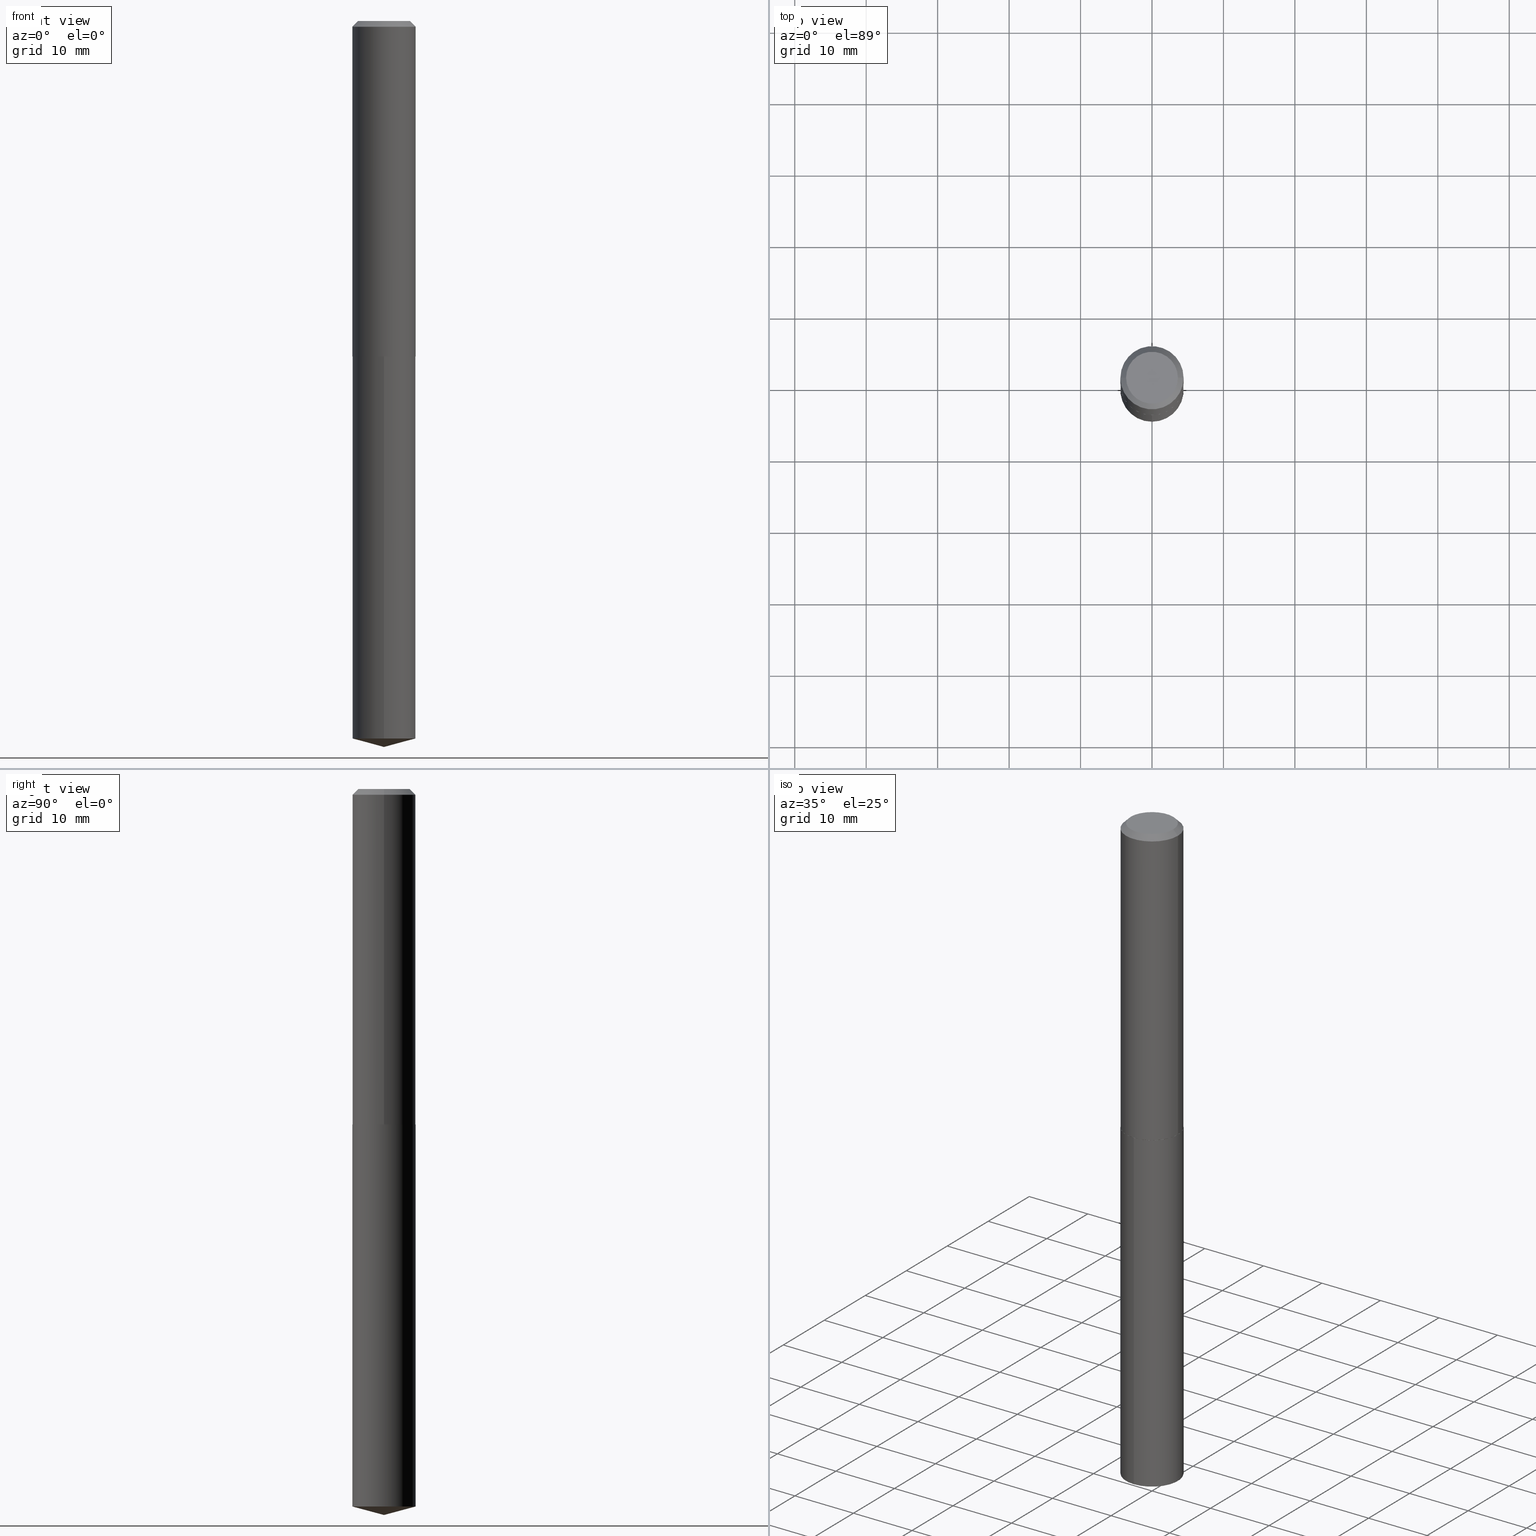
[diagram: canonical four-view strip — front | top / right | iso, engineering-drawing reading convention]
A machine part, canonical four-view strip (front | top / right | iso — engineering-drawing reading convention). The complete STEP part file that produces these views, byte-faithful:
ISO-10303-21;
HEADER;
FILE_DESCRIPTION (( 'STEP AP203' ),
    '1' );
FILE_NAME ('53219.STEP',
    '2024-04-22T19:29:23',
    ( '' ),
    ( '' ),
    'SwSTEP 2.0',
    'SolidWorks 2023',
    '' );
FILE_SCHEMA (( 'CONFIG_CONTROL_DESIGN' ));
ENDSEC;

DATA;
#1 = EDGE_LOOP ( 'NONE', ( #156, #237 ) ) ;
#2 = LINE ( 'NONE', #127, #3 ) ;
#3 = VECTOR ( 'NONE', #13, 39.37007874015748143 ) ;
#4 = CC_DESIGN_PERSON_AND_ORGANIZATION_ASSIGNMENT ( #108, #197, ( #198 ) ) ;
#5 = VERTEX_POINT ( 'NONE', #363 ) ;
#6 = UNCERTAINTY_MEASURE_WITH_UNIT (LENGTH_MEASURE( 1.000000000000000082E-05 ), #69, 'distance_accuracy_value', 'NONE');
#7 = DIRECTION ( 'NONE',  ( 2.438088387897960049E-29, -3.491481338843145188E-15, -1.000000000000000000 ) ) ;
#8 = FACE_OUTER_BOUND ( 'NONE', #193, .T. ) ;
#9 = ORIENTED_EDGE ( 'NONE', *, *, #270, .F. ) ;
#10 = DIRECTION ( 'NONE',  ( 0.7071067811863059882, -2.468850131079726789E-15, 0.7071067811867890462 ) ) ;
#11 = CARTESIAN_POINT ( 'NONE',  ( -0.1735000000000003484, -5.216816640464246268E-15, -1.848000000000000087 ) ) ;
#12 = CARTESIAN_POINT ( 'NONE',  ( 9.667801149324647603E-29, -1.380322537295493422E-14, -3.953376840516984903 ) ) ;
#13 = DIRECTION ( 'NONE',  ( 6.863315791527692682E-15, 0.9659258262890694224, 0.2588190451025165206 ) ) ;
#14 = EDGE_CURVE ( 'NONE', #300, #344, #336, .T. ) ;
#15 = DIRECTION ( 'NONE',  ( -1.000000000000000000, 6.982962677686266711E-15, 0.000000000000000000 ) ) ;
#16 = CARTESIAN_POINT ( 'NONE',  ( 4.519226353830132171E-29, -6.452257514182132781E-15, -1.847999999999999865 ) ) ;
#17 =( GEOMETRIC_REPRESENTATION_CONTEXT ( 3 ) GLOBAL_UNCERTAINTY_ASSIGNED_CONTEXT ( ( #6 ) ) GLOBAL_UNIT_ASSIGNED_CONTEXT ( ( #69, #187, #308 ) ) REPRESENTATION_CONTEXT ( 'NONE', 'WORKASPACE' ) );
#18 = PERSON_AND_ORGANIZATION ( #35, #113 ) ;
#19 = CARTESIAN_POINT ( 'NONE',  ( 0.000000000000000000, 0.000000000000000000, 0.000000000000000000 ) ) ;
#20 = COORDINATED_UNIVERSAL_TIME_OFFSET ( 5, 0, .BEHIND. ) ;
#21 = EDGE_CURVE ( 'NONE', #225, #273, #366, .T. ) ;
#22 = COORDINATED_UNIVERSAL_TIME_OFFSET ( 5, 0, .BEHIND. ) ;
#23 = VECTOR ( 'NONE', #335, 39.37007874015748143 ) ;
#24 = CARTESIAN_POINT ( 'NONE',  ( 9.781763903568464498E-29, -1.396608477362701270E-14, -4.000000000000000000 ) ) ;
#25 = PRODUCT ( '53219', '53219', '', ( #160 ) ) ;
#26 = EDGE_LOOP ( 'NONE', ( #154, #351 ) ) ;
#27 = EDGE_CURVE ( 'NONE', #5, #133, #112, .T. ) ;
#28 = FACE_OUTER_BOUND ( 'NONE', #62, .T. ) ;
#29 = LOCAL_TIME ( 15, 29, 23.00000000000000000, #318 ) ;
#30 = CARTESIAN_POINT ( 'NONE',  ( -1.347675995659193016E-47, 1.924124150653632284E-33, 5.510910596163073378E-19 ) ) ;
#31 = CARTESIAN_POINT ( 'NONE',  ( -1.215035505917364906E-15, -0.1740000000000064273, -1.847999999999999199 ) ) ;
#32 = VECTOR ( 'NONE', #285, 39.37007874015748143 ) ;
#33 = CIRCLE ( 'NONE', #120, 0.1739999999999999880 ) ;
#34 = AXIS2_PLACEMENT_3D ( 'NONE', #321, #86, #326 ) ;
#35 = PERSON ( 'UNSPECIFIED', 'UNSPECIFIED', 'UNSPECIFIED', ('UNSPECIFIED'), ('UNSPECIFIED'), ('UNSPECIFIED') ) ;
#36 = LINE ( 'NONE', #372, #246 ) ;
#37 = ORIENTED_EDGE ( 'NONE', *, *, #96, .T. ) ;
#38 = DIRECTION ( 'NONE',  ( -2.445440975892115844E-29, 3.491521193406753176E-15, 1.000000000000000000 ) ) ;
#39 = CARTESIAN_POINT ( 'NONE',  ( 0.000000000000000000, 0.000000000000000000, 0.000000000000000000 ) ) ;
#40 = ORIENTED_EDGE ( 'NONE', *, *, #121, .T. ) ;
#41 = APPROVAL_PERSON_ORGANIZATION ( #162, #239, #262 ) ;
#42 = EDGE_LOOP ( 'NONE', ( #102, #186, #115, #371 ) ) ;
#43 = DIRECTION ( 'NONE',  ( -2.445440975892115844E-29, 3.491521193406753176E-15, 1.000000000000000000 ) ) ;
#44 = CARTESIAN_POINT ( 'NONE',  ( 7.642090019328611420E-31, -1.091087918388491499E-16, -0.03125000000000024286 ) ) ;
#45 = EDGE_LOOP ( 'NONE', ( #369, #271, #319 ) ) ;
#46 = APPLICATION_PROTOCOL_DEFINITION ( 'international standard', 'config_control_design', 1994, #53 ) ;
#47 = EDGE_CURVE ( 'NONE', #340, #300, #275, .T. ) ;
#48 = CALENDAR_DATE ( 2024, 22, 4 ) ;
#49 = ORIENTED_EDGE ( 'NONE', *, *, #227, .F. ) ;
#50 = CIRCLE ( 'NONE', #385, 0.1740000000000001823 ) ;
#51 = CARTESIAN_POINT ( 'NONE',  ( 9.667801149324647603E-29, -1.380322537295493422E-14, -3.953376840516984903 ) ) ;
#52 = EDGE_CURVE ( 'NONE', #384, #332, #50, .T. ) ;
#53 = APPLICATION_CONTEXT ( 'configuration controlled 3d designs of mechanical parts and assemblies' ) ;
#54 = EDGE_LOOP ( 'NONE', ( #190, #149, #37, #286 ) ) ;
#55 = APPLICATION_PROTOCOL_DEFINITION ( 'international standard', 'config_control_design', 1994, #92 ) ;
#56 = ADVANCED_FACE ( 'NONE', ( #301 ), #365, .T. ) ;
#57 = APPROVAL_ROLE ( '' ) ;
#58 = DIRECTION ( 'NONE',  ( 0.7071067811865447972, -7.319954787623245001E-15, -0.7071067811865501263 ) ) ;
#59 = DIRECTION ( 'NONE',  ( -0.7071067811863059882, 7.493145998869481680E-15, 0.7071067811867890462 ) ) ;
#60 = DIRECTION ( 'NONE',  ( -2.445468806185136597E-29, 3.491481338843145583E-15, 1.000000000000000000 ) ) ;
#61 = AXIS2_PLACEMENT_3D ( 'NONE', #181, #101, #215 ) ;
#62 = EDGE_LOOP ( 'NONE', ( #117, #209, #40, #49 ) ) ;
#63 = ORIENTED_EDGE ( 'NONE', *, *, #52, .T. ) ;
#64 = CARTESIAN_POINT ( 'NONE',  ( -8.649538844133019923E-28, 1.234954531849590373E-13, 35.37007874015748143 ) ) ;
#65 = AXIS2_PLACEMENT_3D ( 'NONE', #39, #146, #219 ) ;
#66 = ADVANCED_FACE ( 'NONE', ( #309 ), #119, .T. ) ;
#67 = CARTESIAN_POINT ( 'NONE',  ( -0.1740000000000001823, -5.214167413290135067E-15, -1.847499999999999920 ) ) ;
#68 = ORIENTED_EDGE ( 'NONE', *, *, #21, .T. ) ;
#69 =( CONVERSION_BASED_UNIT ( 'INCH', #368 ) LENGTH_UNIT ( ) NAMED_UNIT ( #196 ) );
#70 = DIRECTION ( 'NONE',  ( -2.445440975892115844E-29, 3.491521193406753176E-15, 1.000000000000000000 ) ) ;
#71 = CARTESIAN_POINT ( 'NONE',  ( -8.649538844133019923E-28, 1.234954531849590373E-13, 35.37007874015748143 ) ) ;
#72 = DIRECTION ( 'NONE',  ( -2.445468806185136597E-29, 3.491481338843145583E-15, 1.000000000000000000 ) ) ;
#73 = AXIS2_PLACEMENT_3D ( 'NONE', #30, #60, #238 ) ;
#74 = EDGE_CURVE ( 'NONE', #332, #344, #167, .T. ) ;
#75 = AXIS2_PLACEMENT_3D ( 'NONE', #161, #176, #242 ) ;
#76 = CARTESIAN_POINT ( 'NONE',  ( 9.781763903568462255E-29, -1.396608477362701270E-14, -4.000000000000000000 ) ) ;
#77 = DIRECTION ( 'NONE',  ( -2.445468806185136877E-29, 3.491481338843145188E-15, 1.000000000000000000 ) ) ;
#78 = APPROVAL_DATE_TIME ( #260, #239 ) ;
#79 = VECTOR ( 'NONE', #77, 39.37007874015748143 ) ;
#80 = APPROVAL_PERSON_ORGANIZATION ( #375, #231, #135 ) ;
#81 = ORIENTED_EDGE ( 'NONE', *, *, #121, .F. ) ;
#82 = DATE_AND_TIME ( #137, #337 ) ;
#83 = FACE_OUTER_BOUND ( 'NONE', #341, .T. ) ;
#84 = SHAPE_DEFINITION_REPRESENTATION ( #249, #232 ) ;
#85 = DATE_AND_TIME ( #292, #282 ) ;
#86 = DIRECTION ( 'NONE',  ( -2.445468806185136597E-29, 3.491481338843145583E-15, 1.000000000000000000 ) ) ;
#87 = DIRECTION ( 'NONE',  ( 1.000000000000000000, -6.982962677686265133E-15, 0.000000000000000000 ) ) ;
#88 = CARTESIAN_POINT ( 'NONE',  ( 4.519226353830132171E-29, -6.452257514182132781E-15, -1.847999999999999865 ) ) ;
#89 = EDGE_CURVE ( 'NONE', #133, #5, #203, .T. ) ;
#90 = CYLINDRICAL_SURFACE ( 'NONE', #103, 0.1740000000000000713 ) ;
#91 = FACE_OUTER_BOUND ( 'NONE', #213, .T. ) ;
#92 = APPLICATION_CONTEXT ( 'configuration controlled 3d designs of mechanical parts and assemblies' ) ;
#93 = AXIS2_PLACEMENT_3D ( 'NONE', #111, #229, #381 ) ;
#94 = CARTESIAN_POINT ( 'NONE',  ( -6.738379978295965082E-48, 9.620620753268161422E-34, 2.755455298081536689E-19 ) ) ;
#95 = ORIENTED_EDGE ( 'NONE', *, *, #357, .F. ) ;
#96 = EDGE_CURVE ( 'NONE', #208, #133, #250, .T. ) ;
#97 = PERSON_AND_ORGANIZATION_ROLE ( 'design_owner' ) ;
#98 = LOCAL_TIME ( 15, 29, 23.00000000000000000, #199 ) ;
#99 = CARTESIAN_POINT ( 'NONE',  ( 4.519226353830132171E-29, -6.452257514182132781E-15, -1.847999999999999865 ) ) ;
#100 =( LENGTH_UNIT ( ) NAMED_UNIT ( * ) SI_UNIT ( $, .METRE. ) );
#101 = DIRECTION ( 'NONE',  ( -2.445468806185136597E-29, 3.491481338843145583E-15, 1.000000000000000000 ) ) ;
#102 = ORIENTED_EDGE ( 'NONE', *, *, #47, .F. ) ;
#103 = AXIS2_PLACEMENT_3D ( 'NONE', #19, #128, #352 ) ;
#104 = DIRECTION ( 'NONE',  ( -2.445468806185136597E-29, 3.491481338843145583E-15, 1.000000000000000000 ) ) ;
#105 = DATE_TIME_ROLE ( 'classification_date' ) ;
#106 = DIRECTION ( 'NONE',  ( -2.445440975892115844E-29, 3.491521193406753176E-15, 1.000000000000000000 ) ) ;
#107 = VECTOR ( 'NONE', #59, 39.37007874015748143 ) ;
#108 = PERSON_AND_ORGANIZATION ( #35, #113 ) ;
#109 = ADVANCED_FACE ( 'NONE', ( #8 ), #374, .T. ) ;
#110 = DIRECTION ( 'NONE',  ( 1.000000000000000000, -6.982962677686266711E-15, 0.000000000000000000 ) ) ;
#111 = CARTESIAN_POINT ( 'NONE',  ( 4.519226353830132171E-29, -6.452257514182132781E-15, -1.847999999999999865 ) ) ;
#112 = CIRCLE ( 'NONE', #361, 0.1739999999999999880 ) ;
#113 = ORGANIZATION ( 'UNSPECIFIED', 'UNSPECIFIED', '' ) ;
#114 = EDGE_CURVE ( 'NONE', #257, #208, #295, .T. ) ;
#115 = ORIENTED_EDGE ( 'NONE', *, *, #248, .T. ) ;
#116 = CARTESIAN_POINT ( 'NONE',  ( 4.518003619427039369E-29, -6.450511773512711278E-15, -1.847499999999999920 ) ) ;
#117 = ORIENTED_EDGE ( 'NONE', *, *, #74, .F. ) ;
#118 = DIRECTION ( 'NONE',  ( 1.000000000000000000, -6.982962677686265922E-15, 4.876191187177803928E-29 ) ) ;
#119 = CONICAL_SURFACE ( 'NONE', #245, 0.1739999999999999880, 0.7853981633974445042 ) ;
#120 = AXIS2_PLACEMENT_3D ( 'NONE', #130, #104, #136 ) ;
#121 = EDGE_CURVE ( 'NONE', #384, #132, #294, .T. ) ;
#122 = CARTESIAN_POINT ( 'NONE',  ( 0.1740000000000001823, -7.665547279430122726E-15, -1.847499999999999920 ) ) ;
#123 = VECTOR ( 'NONE', #155, 39.37007874015748143 ) ;
#124 = CIRCLE ( 'NONE', #214, 0.1739999999999999880 ) ;
#125 = EDGE_CURVE ( 'NONE', #225, #332, #172, .T. ) ;
#126 = EDGE_LOOP ( 'NONE', ( #180, #205, #346 ) ) ;
#127 = CARTESIAN_POINT ( 'NONE',  ( 9.781867666298941660E-29, -1.396593747115991776E-14, -4.000000000000000000 ) ) ;
#128 = DIRECTION ( 'NONE',  ( -2.445468806185136597E-29, 3.491481338843145583E-15, 1.000000000000000000 ) ) ;
#129 = CYLINDRICAL_SURFACE ( 'NONE', #276, 0.1739999999999999880 ) ;
#130 = CARTESIAN_POINT ( 'NONE',  ( 7.642090019328611420E-31, -1.091087918388491499E-16, -0.03125000000000024286 ) ) ;
#131 = DIRECTION ( 'NONE',  ( -6.982962677686265133E-15, -1.000000000000000000, 3.140055165131337128E-15 ) ) ;
#132 = VERTEX_POINT ( 'NONE', #328 ) ;
#133 = VERTEX_POINT ( 'NONE', #31 ) ;
#134 = LINE ( 'NONE', #325, #299 ) ;
#135 = APPROVAL_ROLE ( '' ) ;
#136 = DIRECTION ( 'NONE',  ( 1.000000000000000000, -6.982962677686266711E-15, 0.000000000000000000 ) ) ;
#137 = CALENDAR_DATE ( 2024, 22, 4 ) ;
#138 = DIRECTION ( 'NONE',  ( -6.982962677686265133E-15, -1.000000000000000000, 3.140055165131337128E-15 ) ) ;
#139 = PERSON_AND_ORGANIZATION ( #35, #113 ) ;
#140 = MANIFOLD_SOLID_BREP ( 'Body-Move/Copy2[1]', #311 ) ;
#141 = EDGE_LOOP ( 'NONE', ( #251, #159 ) ) ;
#142 = CONICAL_SURFACE ( 'NONE', #173, 0.1740000000000001823, 0.7853981633971067744 ) ;
#143 = ORIENTED_EDGE ( 'NONE', *, *, #227, .T. ) ;
#144 = AXIS2_PLACEMENT_3D ( 'NONE', #302, #70, #218 ) ;
#145 = APPROVAL_PERSON_ORGANIZATION ( #139, #364, #57 ) ;
#146 = DIRECTION ( 'NONE',  ( 0.000000000000000000, 0.000000000000000000, 1.000000000000000000 ) ) ;
#147 = PRODUCT_RELATED_PRODUCT_CATEGORY ( 'detail', '', ( #25 ) ) ;
#148 = EDGE_LOOP ( 'NONE', ( #63, #179, #216, #81 ) ) ;
#149 = ORIENTED_EDGE ( 'NONE', *, *, #114, .T. ) ;
#150 = CARTESIAN_POINT ( 'NONE',  ( 0.1740000000000001823, -7.665547279430122726E-15, -1.847499999999999920 ) ) ;
#151 = EDGE_CURVE ( 'NONE', #332, #384, #254, .T. ) ;
#152 = DIRECTION ( 'NONE',  ( -2.445440975892115844E-29, 3.491521193406753176E-15, 1.000000000000000000 ) ) ;
#153 = CIRCLE ( 'NONE', #263, 0.1739999999999999880 ) ;
#154 = ORIENTED_EDGE ( 'NONE', *, *, #89, .T. ) ;
#155 = DIRECTION ( 'NONE',  ( -2.445440975892115844E-29, 3.491521193406753176E-15, 1.000000000000000000 ) ) ;
#156 = ORIENTED_EDGE ( 'NONE', *, *, #270, .T. ) ;
#157 = DIRECTION ( 'NONE',  ( -1.000000000000000000, 6.982962677686265922E-15, -4.876176775795935793E-29 ) ) ;
#158 = DIRECTION ( 'NONE',  ( 1.000000000000000000, -6.982962677686264344E-15, 0.000000000000000000 ) ) ;
#159 = ORIENTED_EDGE ( 'NONE', *, *, #21, .F. ) ;
#160 = MECHANICAL_CONTEXT ( 'NONE', #53, 'mechanical' ) ;
#161 = CARTESIAN_POINT ( 'NONE',  ( 2.487343155591107533E-29, -9.362029901670060756E-15, -1.848000000000000087 ) ) ;
#162 = PERSON_AND_ORGANIZATION ( #35, #113 ) ;
#163 = CONICAL_SURFACE ( 'NONE', #330, 0.1739999999999999880, 0.7853981633974445042 ) ;
#164 = APPROVAL_STATUS ( 'not_yet_approved' ) ;
#165 = PERSON_AND_ORGANIZATION_ROLE ( 'design_supplier' ) ;
#166 = VECTOR ( 'NONE', #10, 39.37007874015748143 ) ;
#167 = LINE ( 'NONE', #347, #79 ) ;
#168 = CALENDAR_DATE ( 2024, 22, 4 ) ;
#169 = DIRECTION ( 'NONE',  ( -6.982962677686265133E-15, -1.000000000000000000, 3.140055165131337128E-15 ) ) ;
#170 = DIRECTION ( 'NONE',  ( -1.000000000000000000, 6.982962677686266711E-15, 0.000000000000000000 ) ) ;
#171 = CC_DESIGN_PERSON_AND_ORGANIZATION_ASSIGNMENT ( #18, #165, ( #379 ) ) ;
#172 = LINE ( 'NONE', #202, #107 ) ;
#173 = AXIS2_PLACEMENT_3D ( 'NONE', #243, #201, #259 ) ;
#174 = CARTESIAN_POINT ( 'NONE',  ( 4.519226353830132731E-29, -6.452257514182133570E-15, -1.848000000000000087 ) ) ;
#175 = ADVANCED_FACE ( 'NONE', ( #83 ), #163, .T. ) ;
#176 = DIRECTION ( 'NONE',  ( -2.438088387897960049E-29, 3.491481338843145188E-15, 1.000000000000000000 ) ) ;
#177 = CC_DESIGN_DATE_AND_TIME_ASSIGNMENT ( #85, #289, ( #244 ) ) ;
#178 = LINE ( 'NONE', #76, #23 ) ;
#179 = ORIENTED_EDGE ( 'NONE', *, *, #74, .T. ) ;
#180 = ORIENTED_EDGE ( 'NONE', *, *, #342, .F. ) ;
#181 = CARTESIAN_POINT ( 'NONE',  ( 0.000000000000000000, 0.000000000000000000, 0.000000000000000000 ) ) ;
#182 = ORIENTED_EDGE ( 'NONE', *, *, #125, .T. ) ;
#183 = CARTESIAN_POINT ( 'NONE',  ( -0.1427499999999999603, 1.051372318159137798E-15, 5.510910596091454784E-19 ) ) ;
#184 = CC_DESIGN_PERSON_AND_ORGANIZATION_ASSIGNMENT ( #224, #253, ( #244 ) ) ;
#185 = CARTESIAN_POINT ( 'NONE',  ( -1.215035505917364906E-15, -0.1740000000000064273, -1.847999999999999199 ) ) ;
#186 = ORIENTED_EDGE ( 'NONE', *, *, #210, .T. ) ;
#187 =( NAMED_UNIT ( * ) PLANE_ANGLE_UNIT ( ) SI_UNIT ( $, .RADIAN. ) );
#188 = CIRCLE ( 'NONE', #34, 0.1735000000000003484 ) ;
#189 = CC_DESIGN_APPROVAL ( #231, ( #198 ) ) ;
#190 = ORIENTED_EDGE ( 'NONE', *, *, #327, .F. ) ;
#191 = FACE_OUTER_BOUND ( 'NONE', #1, .T. ) ;
#192 = DIRECTION ( 'NONE',  ( -6.982962677686265133E-15, -1.000000000000000000, 3.140055165131337128E-15 ) ) ;
#193 = EDGE_LOOP ( 'NONE', ( #269, #182, #353, #95 ) ) ;
#194 = PERSON_AND_ORGANIZATION ( #35, #113 ) ;
#195 = ORIENTED_EDGE ( 'NONE', *, *, #210, .F. ) ;
#196 = DIMENSIONAL_EXPONENTS ( 1.000000000000000000, 0.000000000000000000, 0.000000000000000000, 0.000000000000000000, 0.000000000000000000, 0.000000000000000000, 0.000000000000000000 ) ;
#197 = PERSON_AND_ORGANIZATION_ROLE ( 'classification_officer' ) ;
#198 = SECURITY_CLASSIFICATION ( '', '', #378 ) ;
#199 = COORDINATED_UNIVERSAL_TIME_OFFSET ( 5, 0, .BEHIND. ) ;
#200 = EDGE_CURVE ( 'NONE', #273, #225, #188, .T. ) ;
#201 = DIRECTION ( 'NONE',  ( -2.445468806185136597E-29, 3.491481338843145583E-15, 1.000000000000000000 ) ) ;
#202 = CARTESIAN_POINT ( 'NONE',  ( -0.1740000000000001823, -5.214167413290135067E-15, -1.847499999999999920 ) ) ;
#203 = CIRCLE ( 'NONE', #144, 0.1739999999999999880 ) ;
#204 = CIRCLE ( 'NONE', #354, 0.1427499999999999603 ) ;
#205 = ORIENTED_EDGE ( 'NONE', *, *, #310, .T. ) ;
#206 = ADVANCED_FACE ( 'NONE', ( #296 ), #383, .F. ) ;
#207 = DIRECTION ( 'NONE',  ( -2.445440975892115844E-29, 3.491521193406753176E-15, 1.000000000000000000 ) ) ;
#208 = VERTEX_POINT ( 'NONE', #287 ) ;
#209 = ORIENTED_EDGE ( 'NONE', *, *, #151, .T. ) ;
#210 = EDGE_CURVE ( 'NONE', #340, #132, #134, .T. ) ;
#211 = ADVANCED_FACE ( 'NONE', ( #28 ), #90, .T. ) ;
#212 = FACE_OUTER_BOUND ( 'NONE', #126, .T. ) ;
#213 = EDGE_LOOP ( 'NONE', ( #304, #274, #313, #358 ) ) ;
#214 = AXIS2_PLACEMENT_3D ( 'NONE', #380, #266, #110 ) ;
#215 = DIRECTION ( 'NONE',  ( 1.000000000000000000, -6.982962677686267499E-15, 4.876176775795935793E-29 ) ) ;
#216 = ORIENTED_EDGE ( 'NONE', *, *, #248, .F. ) ;
#217 = DIRECTION ( 'NONE',  ( -6.982962677686266711E-15, -1.000000000000000000, 3.510303681827628206E-15 ) ) ;
#218 = DIRECTION ( 'NONE',  ( -6.982962677686265133E-15, -1.000000000000000000, 3.140055165131337128E-15 ) ) ;
#219 = DIRECTION ( 'NONE',  ( 1.000000000000000000, 0.000000000000000000, 0.000000000000000000 ) ) ;
#220 = AXIS2_PLACEMENT_3D ( 'NONE', #64, #38, #217 ) ;
#221 = PLANE ( 'NONE',  #75 ) ;
#222 = DIRECTION ( 'NONE',  ( 2.445468806185136597E-29, -3.491481338843145583E-15, -1.000000000000000000 ) ) ;
#223 = DIRECTION ( 'NONE',  ( -2.445440975892115844E-29, 3.491521193406753176E-15, 1.000000000000000000 ) ) ;
#224 = PERSON_AND_ORGANIZATION ( #35, #113 ) ;
#225 = VERTEX_POINT ( 'NONE', #11 ) ;
#226 = CC_DESIGN_DATE_AND_TIME_ASSIGNMENT ( #264, #105, ( #198 ) ) ;
#227 = EDGE_CURVE ( 'NONE', #344, #132, #33, .T. ) ;
#228 = APPROVAL_DATE_TIME ( #320, #231 ) ;
#229 = DIRECTION ( 'NONE',  ( 2.445440975892115564E-29, -3.491521193406753176E-15, -1.000000000000000000 ) ) ;
#230 = APPROVAL_DATE_TIME ( #82, #364 ) ;
#231 = APPROVAL ( #315, 'UNSPECIFIED' ) ;
#232 = ADVANCED_BREP_SHAPE_REPRESENTATION ( '53219', ( #140, #277, #65 ), #17 ) ;
#233 = CARTESIAN_POINT ( 'NONE',  ( 7.642090019328611420E-31, -1.091087918388491499E-16, -0.03125000000000024286 ) ) ;
#234 = DIRECTION ( 'NONE',  ( -2.445468806185136597E-29, 3.491481338843145583E-15, 1.000000000000000000 ) ) ;
#235 = CARTESIAN_POINT ( 'NONE',  ( 1.236344360222670479E-15, 0.1739999999999861380, -3.953376840516985347 ) ) ;
#236 = DIRECTION ( 'NONE',  ( -2.445468806185136597E-29, 3.491481338843145583E-15, 1.000000000000000000 ) ) ;
#237 = ORIENTED_EDGE ( 'NONE', *, *, #47, .T. ) ;
#238 = DIRECTION ( 'NONE',  ( 1.000000000000000000, -6.982962677686265922E-15, 4.876191187177803928E-29 ) ) ;
#239 = APPROVAL ( #316, 'UNSPECIFIED' ) ;
#240 = DIRECTION ( 'NONE',  ( -0.7071067811865447972, 2.468850131082228662E-15, -0.7071067811865501263 ) ) ;
#241 = FACE_OUTER_BOUND ( 'NONE', #45, .T. ) ;
#242 = DIRECTION ( 'NONE',  ( 1.000000000000000000, -6.982962677686265922E-15, 4.876176775795935793E-29 ) ) ;
#243 = CARTESIAN_POINT ( 'NONE',  ( 4.518003619427039369E-29, -6.450511773512711278E-15, -1.847499999999999920 ) ) ;
#244 = PRODUCT_DEFINITION ( 'UNKNOWN', '', #379, #252 ) ;
#245 = AXIS2_PLACEMENT_3D ( 'NONE', #44, #222, #15 ) ;
#246 = VECTOR ( 'NONE', #152, 39.37007874015748143 ) ;
#247 = VERTEX_POINT ( 'NONE', #24 ) ;
#248 = EDGE_CURVE ( 'NONE', #132, #344, #124, .T. ) ;
#249 = PRODUCT_DEFINITION_SHAPE ( 'NONE', 'NONE',  #244 ) ;
#250 = LINE ( 'NONE', #185, #123 ) ;
#251 = ORIENTED_EDGE ( 'NONE', *, *, #200, .F. ) ;
#252 = DESIGN_CONTEXT ( 'detailed design', #92, 'design' ) ;
#253 = PERSON_AND_ORGANIZATION_ROLE ( 'creator' ) ;
#254 = CIRCLE ( 'NONE', #348, 0.1740000000000001823 ) ;
#255 = CC_DESIGN_PERSON_AND_ORGANIZATION_ASSIGNMENT ( #194, #293, ( #379 ) ) ;
#256 = DIRECTION ( 'NONE',  ( -2.445440975892115844E-29, 3.491521193406753176E-15, 1.000000000000000000 ) ) ;
#257 = VERTEX_POINT ( 'NONE', #235 ) ;
#258 = COORDINATED_UNIVERSAL_TIME_OFFSET ( 5, 0, .BEHIND. ) ;
#259 = DIRECTION ( 'NONE',  ( 1.000000000000000000, -6.982962677686264344E-15, 0.000000000000000000 ) ) ;
#260 = DATE_AND_TIME ( #168, #98 ) ;
#261 = CC_DESIGN_PERSON_AND_ORGANIZATION_ASSIGNMENT ( #362, #97, ( #25 ) ) ;
#262 = APPROVAL_ROLE ( '' ) ;
#263 = AXIS2_PLACEMENT_3D ( 'NONE', #51, #106, #138 ) ;
#264 = DATE_AND_TIME ( #355, #29 ) ;
#265 = DIRECTION ( 'NONE',  ( 1.000000000000000000, -6.982962677686264344E-15, 0.000000000000000000 ) ) ;
#266 = DIRECTION ( 'NONE',  ( -2.445468806185136597E-29, 3.491481338843145583E-15, 1.000000000000000000 ) ) ;
#267 = AXIS2_PLACEMENT_3D ( 'NONE', #99, #343, #131 ) ;
#268 = CC_DESIGN_APPROVAL ( #364, ( #244 ) ) ;
#269 = ORIENTED_EDGE ( 'NONE', *, *, #200, .T. ) ;
#270 = EDGE_CURVE ( 'NONE', #300, #340, #204, .T. ) ;
#271 = ORIENTED_EDGE ( 'NONE', *, *, #342, .T. ) ;
#272 = ORIENTED_EDGE ( 'NONE', *, *, #14, .T. ) ;
#273 = VERTEX_POINT ( 'NONE', #279 ) ;
#274 = ORIENTED_EDGE ( 'NONE', *, *, #327, .T. ) ;
#275 = CIRCLE ( 'NONE', #73, 0.1427499999999999603 ) ;
#276 = AXIS2_PLACEMENT_3D ( 'NONE', #16, #256, #291 ) ;
#277 = MANIFOLD_SOLID_BREP ( 'Body-Move/Copy2[2]', #376 ) ;
#278 = ADVANCED_FACE ( 'NONE', ( #367 ), #142, .T. ) ;
#279 = CARTESIAN_POINT ( 'NONE',  ( 0.1735000000000003484, -7.663801538760703589E-15, -1.848000000000000087 ) ) ;
#280 = ORIENTED_EDGE ( 'NONE', *, *, #125, .F. ) ;
#281 = ORIENTED_EDGE ( 'NONE', *, *, #357, .T. ) ;
#282 = LOCAL_TIME ( 15, 29, 23.00000000000000000, #22 ) ;
#283 = PLANE ( 'NONE',  #290 ) ;
#284 = EDGE_CURVE ( 'NONE', #208, #257, #153, .T. ) ;
#285 = DIRECTION ( 'NONE',  ( -2.445468806185136877E-29, 3.491481338843145188E-15, 1.000000000000000000 ) ) ;
#286 = ORIENTED_EDGE ( 'NONE', *, *, #27, .F. ) ;
#287 = CARTESIAN_POINT ( 'NONE',  ( -1.215035505917313433E-15, -0.1740000000000137825, -3.953376840516984014 ) ) ;
#288 = VECTOR ( 'NONE', #240, 39.37007874015748854 ) ;
#289 = DATE_TIME_ROLE ( 'creation_date' ) ;
#290 = AXIS2_PLACEMENT_3D ( 'NONE', #94, #7, #157 ) ;
#291 = DIRECTION ( 'NONE',  ( -6.982962677686265133E-15, -1.000000000000000000, 3.140055165131337128E-15 ) ) ;
#292 = CALENDAR_DATE ( 2024, 22, 4 ) ;
#293 = PERSON_AND_ORGANIZATION_ROLE ( 'creator' ) ;
#294 = LINE ( 'NONE', #323, #32 ) ;
#295 = CIRCLE ( 'NONE', #373, 0.1739999999999999880 ) ;
#296 = FACE_OUTER_BOUND ( 'NONE', #26, .T. ) ;
#297 = ADVANCED_FACE ( 'NONE', ( #360 ), #221, .F. ) ;
#298 = ADVANCED_FACE ( 'NONE', ( #91 ), #129, .T. ) ;
#299 = VECTOR ( 'NONE', #58, 39.37007874015748854 ) ;
#300 = VERTEX_POINT ( 'NONE', #183 ) ;
#301 = FACE_OUTER_BOUND ( 'NONE', #54, .T. ) ;
#302 = CARTESIAN_POINT ( 'NONE',  ( 4.519226353830132171E-29, -6.452257514182132781E-15, -1.847999999999999865 ) ) ;
#303 = DIRECTION ( 'NONE',  ( 1.000000000000000000, -6.982962677686264344E-15, 0.000000000000000000 ) ) ;
#304 = ORIENTED_EDGE ( 'NONE', *, *, #284, .T. ) ;
#305 = AXIS2_PLACEMENT_3D ( 'NONE', #71, #43, #370 ) ;
#306 = DIRECTION ( 'NONE',  ( -2.445468806185136597E-29, 3.491481338843145583E-15, 1.000000000000000000 ) ) ;
#307 = LINE ( 'NONE', #122, #166 ) ;
#308 =( NAMED_UNIT ( * ) SI_UNIT ( $, .STERADIAN. ) SOLID_ANGLE_UNIT ( ) );
#309 = FACE_OUTER_BOUND ( 'NONE', #42, .T. ) ;
#310 = EDGE_CURVE ( 'NONE', #247, #257, #2, .T. ) ;
#311 = CLOSED_SHELL ( 'NONE', ( #298, #377, #387, #56, #206 ) ) ;
#312 = CYLINDRICAL_SURFACE ( 'NONE', #61, 0.1740000000000000713 ) ;
#313 = ORIENTED_EDGE ( 'NONE', *, *, #89, .F. ) ;
#314 = EDGE_LOOP ( 'NONE', ( #280, #68, #281, #386 ) ) ;
#315 = APPROVAL_STATUS ( 'not_yet_approved' ) ;
#316 = APPROVAL_STATUS ( 'not_yet_approved' ) ;
#317 = CC_DESIGN_APPROVAL ( #239, ( #379 ) ) ;
#318 = COORDINATED_UNIVERSAL_TIME_OFFSET ( 5, 0, .BEHIND. ) ;
#319 = ORIENTED_EDGE ( 'NONE', *, *, #114, .F. ) ;
#320 = DATE_AND_TIME ( #48, #338 ) ;
#321 = CARTESIAN_POINT ( 'NONE',  ( 4.519226353830132731E-29, -6.452257514182133570E-15, -1.848000000000000087 ) ) ;
#322 = AXIS2_PLACEMENT_3D ( 'NONE', #174, #234, #87 ) ;
#323 = CARTESIAN_POINT ( 'NONE',  ( 0.1740000000000000713, -1.215035505917411055E-15, 8.484547589884932035E-30 ) ) ;
#324 = CONICAL_SURFACE ( 'NONE', #305, 146.9311341562555242, 1.308996938995748094 ) ;
#325 = CARTESIAN_POINT ( 'NONE',  ( 0.1739999999999999880, -1.302835443451095394E-15, -0.03125000000000024286 ) ) ;
#326 = DIRECTION ( 'NONE',  ( 1.000000000000000000, -6.982962677686265133E-15, 0.000000000000000000 ) ) ;
#327 = EDGE_CURVE ( 'NONE', #257, #5, #36, .T. ) ;
#328 = CARTESIAN_POINT ( 'NONE',  ( 0.1739999999999999880, -1.324144297756259366E-15, -0.03125000000000024286 ) ) ;
#329 = ADVANCED_FACE ( 'NONE', ( #349 ), #312, .T. ) ;
#330 = AXIS2_PLACEMENT_3D ( 'NONE', #233, #356, #170 ) ;
#331 = CARTESIAN_POINT ( 'NONE',  ( -1.347675995659193016E-47, 1.924124150653632284E-33, 5.510910596163073378E-19 ) ) ;
#332 = VERTEX_POINT ( 'NONE', #67 ) ;
#333 = CARTESIAN_POINT ( 'NONE',  ( -0.1739999999999999880, 1.105926714078561165E-15, -0.03125000000000024286 ) ) ;
#334 = ADVANCED_FACE ( 'NONE', ( #191 ), #283, .F. ) ;
#335 = DIRECTION ( 'NONE',  ( -6.745023994389839133E-15, -0.9659258262890676461, 0.2588190451025232930 ) ) ;
#336 = LINE ( 'NONE', #333, #288 ) ;
#337 = LOCAL_TIME ( 15, 29, 23.00000000000000000, #20 ) ;
#338 = LOCAL_TIME ( 15, 29, 23.00000000000000000, #258 ) ;
#339 = CARTESIAN_POINT ( 'NONE',  ( -0.1739999999999999880, -2.043465922453204373E-15, -0.03125000000000024286 ) ) ;
#340 = VERTEX_POINT ( 'NONE', #390 ) ;
#341 = EDGE_LOOP ( 'NONE', ( #195, #9, #272, #143 ) ) ;
#342 = EDGE_CURVE ( 'NONE', #247, #208, #178, .T. ) ;
#343 = DIRECTION ( 'NONE',  ( -2.445440975892115844E-29, 3.491521193406753176E-15, 1.000000000000000000 ) ) ;
#344 = VERTEX_POINT ( 'NONE', #339 ) ;
#345 = CARTESIAN_POINT ( 'NONE',  ( 4.518003619427039369E-29, -6.450511773512711278E-15, -1.847499999999999920 ) ) ;
#346 = ORIENTED_EDGE ( 'NONE', *, *, #284, .F. ) ;
#347 = CARTESIAN_POINT ( 'NONE',  ( -0.1740000000000000713, 1.236344360222574830E-15, -8.558947057043539962E-30 ) ) ;
#348 = AXIS2_PLACEMENT_3D ( 'NONE', #382, #236, #265 ) ;
#349 = FACE_OUTER_BOUND ( 'NONE', #148, .T. ) ;
#350 = CC_DESIGN_SECURITY_CLASSIFICATION ( #198, ( #379 ) ) ;
#351 = ORIENTED_EDGE ( 'NONE', *, *, #27, .T. ) ;
#352 = DIRECTION ( 'NONE',  ( 1.000000000000000000, -6.982962677686267499E-15, 4.876176775795935793E-29 ) ) ;
#353 = ORIENTED_EDGE ( 'NONE', *, *, #52, .F. ) ;
#354 = AXIS2_PLACEMENT_3D ( 'NONE', #331, #306, #118 ) ;
#355 = CALENDAR_DATE ( 2024, 22, 4 ) ;
#356 = DIRECTION ( 'NONE',  ( 2.445468806185136597E-29, -3.491481338843145583E-15, -1.000000000000000000 ) ) ;
#357 = EDGE_CURVE ( 'NONE', #273, #384, #307, .T. ) ;
#358 = ORIENTED_EDGE ( 'NONE', *, *, #96, .F. ) ;
#359 = DIRECTION ( 'NONE',  ( -2.445468806185136597E-29, 3.491481338843145583E-15, 1.000000000000000000 ) ) ;
#360 = FACE_OUTER_BOUND ( 'NONE', #141, .T. ) ;
#361 = AXIS2_PLACEMENT_3D ( 'NONE', #88, #207, #169 ) ;
#362 = PERSON_AND_ORGANIZATION ( #35, #113 ) ;
#363 = CARTESIAN_POINT ( 'NONE',  ( 1.236344360222670676E-15, 0.1739999999999935210, -1.848000000000000309 ) ) ;
#364 = APPROVAL ( #164, 'UNSPECIFIED' ) ;
#365 = CYLINDRICAL_SURFACE ( 'NONE', #267, 0.1739999999999999880 ) ;
#366 = CIRCLE ( 'NONE', #322, 0.1735000000000003484 ) ;
#367 = FACE_OUTER_BOUND ( 'NONE', #314, .T. ) ;
#368 = LENGTH_MEASURE_WITH_UNIT ( LENGTH_MEASURE( 0.02539999999999999897 ), #100 );
#369 = ORIENTED_EDGE ( 'NONE', *, *, #310, .F. ) ;
#370 = DIRECTION ( 'NONE',  ( -6.982962677686266711E-15, -1.000000000000000000, 3.510303681827628206E-15 ) ) ;
#371 = ORIENTED_EDGE ( 'NONE', *, *, #14, .F. ) ;
#372 = CARTESIAN_POINT ( 'NONE',  ( 1.236344360222619006E-15, 0.1739999999999935210, -1.848000000000000309 ) ) ;
#373 = AXIS2_PLACEMENT_3D ( 'NONE', #12, #223, #192 ) ;
#374 = CONICAL_SURFACE ( 'NONE', #388, 0.1740000000000001823, 0.7853981633971067744 ) ;
#375 = PERSON_AND_ORGANIZATION ( #35, #113 ) ;
#376 = CLOSED_SHELL ( 'NONE', ( #66, #329, #109, #297, #278, #211, #175, #334 ) ) ;
#377 = ADVANCED_FACE ( 'NONE', ( #212 ), #389, .T. ) ;
#378 = SECURITY_CLASSIFICATION_LEVEL ( 'unclassified' ) ;
#379 = PRODUCT_DEFINITION_FORMATION_WITH_SPECIFIED_SOURCE ( 'ANY', '', #25, .NOT_KNOWN. ) ;
#380 = CARTESIAN_POINT ( 'NONE',  ( 7.642090019328611420E-31, -1.091087918388491499E-16, -0.03125000000000024286 ) ) ;
#381 = DIRECTION ( 'NONE',  ( 6.982962677686265922E-15, 1.000000000000000000, -3.491521193406753176E-15 ) ) ;
#382 = CARTESIAN_POINT ( 'NONE',  ( 4.518003619427039369E-29, -6.450511773512711278E-15, -1.847499999999999920 ) ) ;
#383 = PLANE ( 'NONE',  #93 ) ;
#384 = VERTEX_POINT ( 'NONE', #150 ) ;
#385 = AXIS2_PLACEMENT_3D ( 'NONE', #116, #359, #303 ) ;
#386 = ORIENTED_EDGE ( 'NONE', *, *, #151, .F. ) ;
#387 = ADVANCED_FACE ( 'NONE', ( #241 ), #324, .T. ) ;
#388 = AXIS2_PLACEMENT_3D ( 'NONE', #345, #72, #158 ) ;
#389 = CONICAL_SURFACE ( 'NONE', #220, 146.9311341562555242, 1.308996938995748094 ) ;
#390 = CARTESIAN_POINT ( 'NONE',  ( 0.1427499999999999603, -1.141085766316490663E-15, 5.510910596237823534E-19 ) ) ;
ENDSEC;
END-ISO-10303-21;
